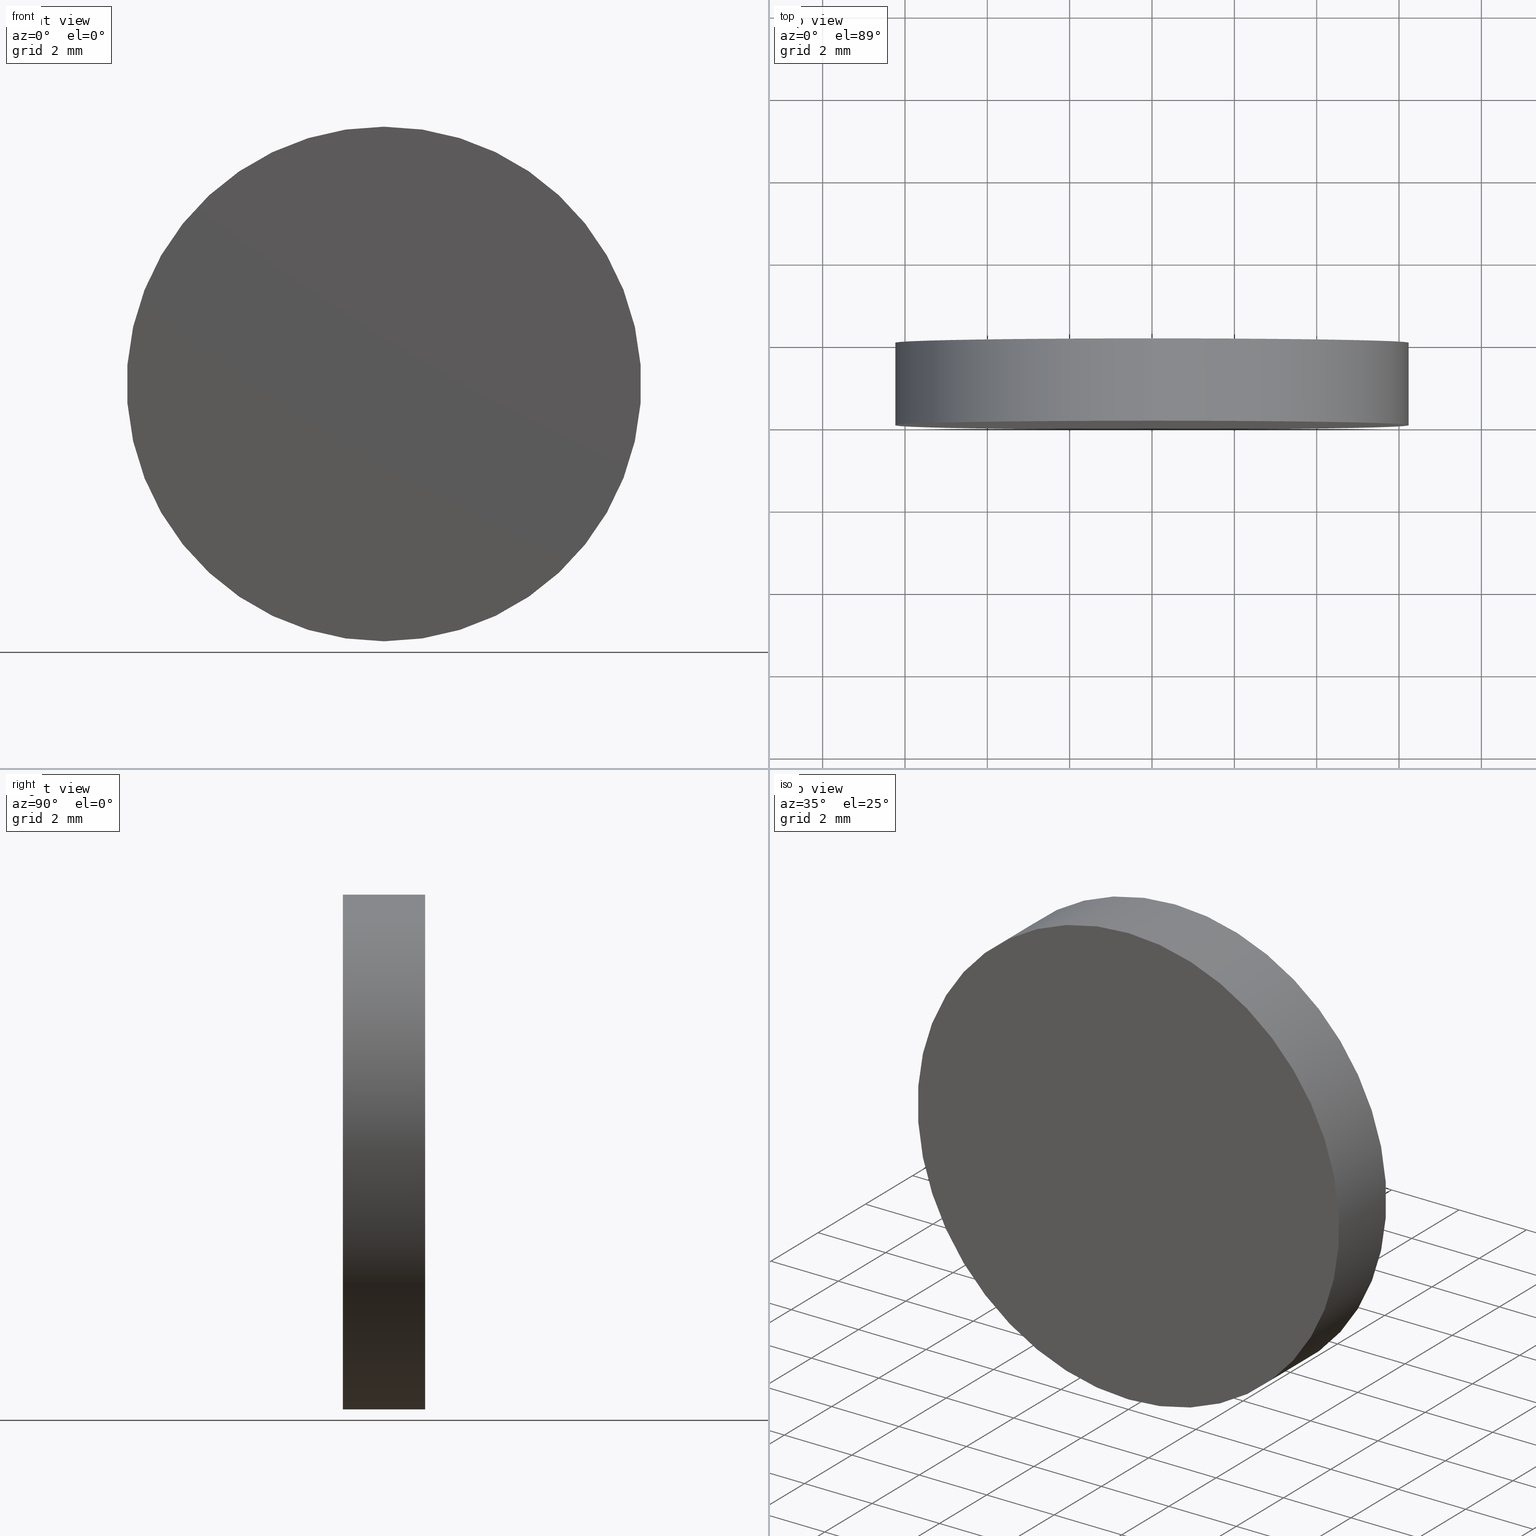
[diagram: canonical four-view strip — front | top / right | iso, engineering-drawing reading convention]
A machine part, canonical four-view strip (front | top / right | iso — engineering-drawing reading convention). The complete STEP part file that produces these views, byte-faithful:
ISO-10303-21;
HEADER;
FILE_DESCRIPTION (( 'STEP AP214' ),
    '1' );
FILE_NAME ('238540.STEP',
    '2019-07-31T08:03:53',
    ( 'user' ),
    ( '΢���й�' ),
    'SwSTEP 2.0',
    'SolidWorks 2016',
    '' );
FILE_SCHEMA (( 'AUTOMOTIVE_DESIGN' ));
ENDSEC;

DATA;
#1 = FILL_AREA_STYLE_COLOUR ( '', #101 ) ;
#2 =( NAMED_UNIT ( * ) PLANE_ANGLE_UNIT ( ) SI_UNIT ( $, .RADIAN. ) );
#3 = ORIENTED_EDGE ( 'NONE', *, *, #89, .T. ) ;
#4 = PRODUCT_DEFINITION_CONTEXT ( 'detailed design', #29, 'design' ) ;
#5 = CLOSED_SHELL ( 'NONE', ( #33, #43, #91, #124 ) ) ;
#6 = AXIS2_PLACEMENT_3D ( 'NONE', #17, #24, #94 ) ;
#7 = SHAPE_DEFINITION_REPRESENTATION ( #98, #31 ) ;
#8 =( NAMED_UNIT ( * ) SI_UNIT ( $, .STERADIAN. ) SOLID_ANGLE_UNIT ( ) );
#9 = FILL_AREA_STYLE_COLOUR ( '', #126 ) ;
#10 = DIRECTION ( 'NONE',  ( 0.0000000000000000000, 1.000000000000000000, 0.0000000000000000000 ) ) ;
#11 = STYLED_ITEM ( 'NONE', ( #109 ), #31 ) ;
#12 =( LENGTH_UNIT ( ) NAMED_UNIT ( * ) SI_UNIT ( .MILLI., .METRE. ) );
#13 = PRESENTATION_LAYER_ASSIGNMENT (  '', '', ( #11 ) ) ;
#14 = PRESENTATION_STYLE_ASSIGNMENT (( #131 ) ) ;
#15 = MECHANICAL_DESIGN_GEOMETRIC_PRESENTATION_REPRESENTATION (  '', ( #11 ), #75 ) ;
#16 = ORIENTED_EDGE ( 'NONE', *, *, #89, .F. ) ;
#17 = CARTESIAN_POINT ( 'NONE',  ( 0.0000000000000000000, 2.000000000000000000, 0.0000000000000000000 ) ) ;
#18 = CARTESIAN_POINT ( 'NONE',  ( 0.0000000000000000000, 2.000000000000000000, 0.0000000000000000000 ) ) ;
#19 = CARTESIAN_POINT ( 'NONE',  ( 0.0000000000000000000, 2.000000000000000000, -6.250000000000000000 ) ) ;
#20 = APPLICATION_PROTOCOL_DEFINITION ( 'draft international standard', 'automotive_design', 1998, #29 ) ;
#21 = VECTOR ( 'NONE', #92, 1000.000000000000000 ) ;
#22 = EDGE_CURVE ( 'NONE', #136, #52, #42, .T. ) ;
#23 = EDGE_LOOP ( 'NONE', ( #30, #3, #108, #71 ) ) ;
#24 = DIRECTION ( 'NONE',  ( -0.0000000000000000000, -1.000000000000000000, -0.0000000000000000000 ) ) ;
#25 = STYLED_ITEM ( 'NONE', ( #14 ), #99 ) ;
#26 = DIRECTION ( 'NONE',  ( 0.0000000000000000000, 1.000000000000000000, 0.0000000000000000000 ) ) ;
#27 = CYLINDRICAL_SURFACE ( 'NONE', #6, 6.250000000000000000 ) ;
#28 =( NAMED_UNIT ( * ) SI_UNIT ( $, .STERADIAN. ) SOLID_ANGLE_UNIT ( ) );
#29 = APPLICATION_CONTEXT ( 'automotive_design' ) ;
#30 = ORIENTED_EDGE ( 'NONE', *, *, #22, .F. ) ;
#31 = ADVANCED_BREP_SHAPE_REPRESENTATION ( '238540', ( #99, #44 ), #127 ) ;
#32 = AXIS2_PLACEMENT_3D ( 'NONE', #117, #26, #115 ) ;
#33 = ADVANCED_FACE ( 'NONE', ( #88 ), #27, .T. ) ;
#34 = CIRCLE ( 'NONE', #78, 6.250000000000000000 ) ;
#35 = PRESENTATION_LAYER_ASSIGNMENT (  '', '', ( #25 ) ) ;
#36 = CARTESIAN_POINT ( 'NONE',  ( 0.0000000000000000000, 0.0000000000000000000, 0.0000000000000000000 ) ) ;
#37 = CARTESIAN_POINT ( 'NONE',  ( 0.0000000000000000000, 0.0000000000000000000, 0.0000000000000000000 ) ) ;
#38 = PLANE ( 'NONE',  #62 ) ;
#39 = DIRECTION ( 'NONE',  ( 1.000000000000000000, 0.0000000000000000000, 0.0000000000000000000 ) ) ;
#40 = SURFACE_STYLE_FILL_AREA ( #83 ) ;
#41 = EDGE_CURVE ( 'NONE', #61, #63, #110, .T. ) ;
#42 = CIRCLE ( 'NONE', #32, 6.250000000000000000 ) ;
#43 = ADVANCED_FACE ( 'NONE', ( #48 ), #90, .T. ) ;
#44 = AXIS2_PLACEMENT_3D ( 'NONE', #51, #121, #39 ) ;
#45 = UNCERTAINTY_MEASURE_WITH_UNIT (LENGTH_MEASURE( 1.000000000000000100E-005 ), #12, 'distance_accuracy_value', 'NONE');
#46 = SURFACE_SIDE_STYLE ('',( #40 ) ) ;
#47 = CARTESIAN_POINT ( 'NONE',  ( 7.654042494670957600E-016, 2.000000000000000000, 6.250000000000000000 ) ) ;
#48 = FACE_OUTER_BOUND ( 'NONE', #65, .T. ) ;
#49 = SURFACE_SIDE_STYLE ('',( #120 ) ) ;
#50 = CARTESIAN_POINT ( 'NONE',  ( 0.0000000000000000000, 2.000000000000000000, 0.0000000000000000000 ) ) ;
#51 = CARTESIAN_POINT ( 'NONE',  ( 0.0000000000000000000, 0.0000000000000000000, 0.0000000000000000000 ) ) ;
#52 = VERTEX_POINT ( 'NONE', #19 ) ;
#53 = EDGE_CURVE ( 'NONE', #52, #136, #34, .T. ) ;
#54 = ORIENTED_EDGE ( 'NONE', *, *, #112, .T. ) ;
#55 = ORIENTED_EDGE ( 'NONE', *, *, #105, .T. ) ;
#56 = APPLICATION_CONTEXT ( 'automotive_design' ) ;
#57 = ORIENTED_EDGE ( 'NONE', *, *, #53, .T. ) ;
#58 = DIRECTION ( 'NONE',  ( 0.0000000000000000000, 1.000000000000000000, 0.0000000000000000000 ) ) ;
#59 = FILL_AREA_STYLE ('',( #1 ) ) ;
#60 = SURFACE_STYLE_USAGE ( .BOTH. , #46 ) ;
#61 = VERTEX_POINT ( 'NONE', #84 ) ;
#62 = AXIS2_PLACEMENT_3D ( 'NONE', #37, #58, #82 ) ;
#63 = VERTEX_POINT ( 'NONE', #133 ) ;
#64 = AXIS2_PLACEMENT_3D ( 'NONE', #18, #10, #68 ) ;
#65 = EDGE_LOOP ( 'NONE', ( #16, #102, #55, #54 ) ) ;
#66 = CARTESIAN_POINT ( 'NONE',  ( 0.0000000000000000000, 0.0000000000000000000, 0.0000000000000000000 ) ) ;
#67 = ORIENTED_EDGE ( 'NONE', *, *, #22, .T. ) ;
#68 = DIRECTION ( 'NONE',  ( 0.0000000000000000000, -0.0000000000000000000, 1.000000000000000000 ) ) ;
#69 = CARTESIAN_POINT ( 'NONE',  ( 7.654042494670957600E-016, 2.000000000000000000, 6.250000000000000000 ) ) ;
#70 =( NAMED_UNIT ( * ) SI_UNIT ( $, .STERADIAN. ) SOLID_ANGLE_UNIT ( ) );
#71 = ORIENTED_EDGE ( 'NONE', *, *, #105, .F. ) ;
#72 = MECHANICAL_DESIGN_GEOMETRIC_PRESENTATION_REPRESENTATION (  '', ( #25 ), #134 ) ;
#73 = PRODUCT ( '238540', '238540', '', ( #107 ) ) ;
#74 = ORIENTED_EDGE ( 'NONE', *, *, #41, .F. ) ;
#75 =( GEOMETRIC_REPRESENTATION_CONTEXT ( 3 ) GLOBAL_UNCERTAINTY_ASSIGNED_CONTEXT ( ( #45 ) ) GLOBAL_UNIT_ASSIGNED_CONTEXT ( ( #12, #86, #28 ) ) REPRESENTATION_CONTEXT ( 'NONE', 'WORKASPACE' ) );
#76 = EDGE_LOOP ( 'NONE', ( #137, #74 ) ) ;
#77 = EDGE_LOOP ( 'NONE', ( #57, #67 ) ) ;
#78 = AXIS2_PLACEMENT_3D ( 'NONE', #50, #95, #130 ) ;
#79 =( NAMED_UNIT ( * ) PLANE_ANGLE_UNIT ( ) SI_UNIT ( $, .RADIAN. ) );
#80 = DIRECTION ( 'NONE',  ( 0.0000000000000000000, 0.0000000000000000000, -1.000000000000000000 ) ) ;
#81 = LINE ( 'NONE', #106, #21 ) ;
#82 = DIRECTION ( 'NONE',  ( 0.0000000000000000000, -0.0000000000000000000, 1.000000000000000000 ) ) ;
#83 = FILL_AREA_STYLE ('',( #9 ) ) ;
#84 = CARTESIAN_POINT ( 'NONE',  ( 7.654042494670957600E-016, 0.0000000000000000000, 6.250000000000000000 ) ) ;
#85 = LINE ( 'NONE', #69, #97 ) ;
#86 =( NAMED_UNIT ( * ) PLANE_ANGLE_UNIT ( ) SI_UNIT ( $, .RADIAN. ) );
#87 = PRODUCT_RELATED_PRODUCT_CATEGORY ( 'part', '', ( #73 ) ) ;
#88 = FACE_OUTER_BOUND ( 'NONE', #23, .T. ) ;
#89 = EDGE_CURVE ( 'NONE', #136, #61, #85, .T. ) ;
#90 = CYLINDRICAL_SURFACE ( 'NONE', #123, 6.250000000000000000 ) ;
#91 = ADVANCED_FACE ( 'NONE', ( #114 ), #96, .T. ) ;
#92 = DIRECTION ( 'NONE',  ( -0.0000000000000000000, -1.000000000000000000, -0.0000000000000000000 ) ) ;
#93 = DIRECTION ( 'NONE',  ( 0.0000000000000000000, 1.000000000000000000, 0.0000000000000000000 ) ) ;
#94 = DIRECTION ( 'NONE',  ( 0.0000000000000000000, 0.0000000000000000000, -1.000000000000000000 ) ) ;
#95 = DIRECTION ( 'NONE',  ( 0.0000000000000000000, 1.000000000000000000, 0.0000000000000000000 ) ) ;
#96 = PLANE ( 'NONE',  #64 ) ;
#97 = VECTOR ( 'NONE', #140, 1000.000000000000000 ) ;
#98 = PRODUCT_DEFINITION_SHAPE ( 'NONE', 'NONE',  #132 ) ;
#99 = MANIFOLD_SOLID_BREP ( '͹̨-����1', #5 ) ;
#100 = PRODUCT_DEFINITION_FORMATION_WITH_SPECIFIED_SOURCE ( '�κ�', '', #73, .NOT_KNOWN. ) ;
#101 = COLOUR_RGB ( '',1.000000000000000000, 1.000000000000000000, 1.000000000000000000 ) ;
#102 = ORIENTED_EDGE ( 'NONE', *, *, #53, .F. ) ;
#103 = CARTESIAN_POINT ( 'NONE',  ( 0.0000000000000000000, 2.000000000000000000, 0.0000000000000000000 ) ) ;
#104 = DIRECTION ( 'NONE',  ( 0.0000000000000000000, 0.0000000000000000000, 1.000000000000000000 ) ) ;
#105 = EDGE_CURVE ( 'NONE', #52, #63, #81, .T. ) ;
#106 = CARTESIAN_POINT ( 'NONE',  ( 0.0000000000000000000, 2.000000000000000000, -6.250000000000000000 ) ) ;
#107 = PRODUCT_CONTEXT ( 'NONE', #56, 'mechanical' ) ;
#108 = ORIENTED_EDGE ( 'NONE', *, *, #41, .T. ) ;
#109 = PRESENTATION_STYLE_ASSIGNMENT (( #60 ) ) ;
#110 = CIRCLE ( 'NONE', #111, 6.250000000000000000 ) ;
#111 = AXIS2_PLACEMENT_3D ( 'NONE', #36, #93, #104 ) ;
#112 = EDGE_CURVE ( 'NONE', #63, #61, #113, .T. ) ;
#113 = CIRCLE ( 'NONE', #118, 6.250000000000000000 ) ;
#114 = FACE_OUTER_BOUND ( 'NONE', #77, .T. ) ;
#115 = DIRECTION ( 'NONE',  ( 0.0000000000000000000, 0.0000000000000000000, 1.000000000000000000 ) ) ;
#116 = APPLICATION_PROTOCOL_DEFINITION ( 'draft international standard', 'automotive_design', 1998, #56 ) ;
#117 = CARTESIAN_POINT ( 'NONE',  ( 0.0000000000000000000, 2.000000000000000000, 0.0000000000000000000 ) ) ;
#118 = AXIS2_PLACEMENT_3D ( 'NONE', #66, #139, #128 ) ;
#119 =( LENGTH_UNIT ( ) NAMED_UNIT ( * ) SI_UNIT ( .MILLI., .METRE. ) );
#120 = SURFACE_STYLE_FILL_AREA ( #59 ) ;
#121 = DIRECTION ( 'NONE',  ( 0.0000000000000000000, 0.0000000000000000000, 1.000000000000000000 ) ) ;
#122 = FACE_OUTER_BOUND ( 'NONE', #76, .T. ) ;
#123 = AXIS2_PLACEMENT_3D ( 'NONE', #103, #129, #80 ) ;
#124 = ADVANCED_FACE ( 'NONE', ( #122 ), #38, .F. ) ;
#125 = UNCERTAINTY_MEASURE_WITH_UNIT (LENGTH_MEASURE( 1.000000000000000100E-005 ), #138, 'distance_accuracy_value', 'NONE');
#126 = COLOUR_RGB ( '',1.000000000000000000, 1.000000000000000000, 1.000000000000000000 ) ;
#127 =( GEOMETRIC_REPRESENTATION_CONTEXT ( 3 ) GLOBAL_UNCERTAINTY_ASSIGNED_CONTEXT ( ( #125 ) ) GLOBAL_UNIT_ASSIGNED_CONTEXT ( ( #138, #79, #8 ) ) REPRESENTATION_CONTEXT ( 'NONE', 'WORKASPACE' ) );
#128 = DIRECTION ( 'NONE',  ( 0.0000000000000000000, 0.0000000000000000000, 1.000000000000000000 ) ) ;
#129 = DIRECTION ( 'NONE',  ( -0.0000000000000000000, -1.000000000000000000, -0.0000000000000000000 ) ) ;
#130 = DIRECTION ( 'NONE',  ( 0.0000000000000000000, 0.0000000000000000000, 1.000000000000000000 ) ) ;
#131 = SURFACE_STYLE_USAGE ( .BOTH. , #49 ) ;
#132 = PRODUCT_DEFINITION ( 'δ֪', '', #100, #4 ) ;
#133 = CARTESIAN_POINT ( 'NONE',  ( 0.0000000000000000000, 0.0000000000000000000, -6.250000000000000000 ) ) ;
#134 =( GEOMETRIC_REPRESENTATION_CONTEXT ( 3 ) GLOBAL_UNCERTAINTY_ASSIGNED_CONTEXT ( ( #135 ) ) GLOBAL_UNIT_ASSIGNED_CONTEXT ( ( #119, #2, #70 ) ) REPRESENTATION_CONTEXT ( 'NONE', 'WORKASPACE' ) );
#135 = UNCERTAINTY_MEASURE_WITH_UNIT (LENGTH_MEASURE( 1.000000000000000100E-005 ), #119, 'distance_accuracy_value', 'NONE');
#136 = VERTEX_POINT ( 'NONE', #47 ) ;
#137 = ORIENTED_EDGE ( 'NONE', *, *, #112, .F. ) ;
#138 =( LENGTH_UNIT ( ) NAMED_UNIT ( * ) SI_UNIT ( .MILLI., .METRE. ) );
#139 = DIRECTION ( 'NONE',  ( 0.0000000000000000000, 1.000000000000000000, 0.0000000000000000000 ) ) ;
#140 = DIRECTION ( 'NONE',  ( -0.0000000000000000000, -1.000000000000000000, -0.0000000000000000000 ) ) ;
ENDSEC;
END-ISO-10303-21;
